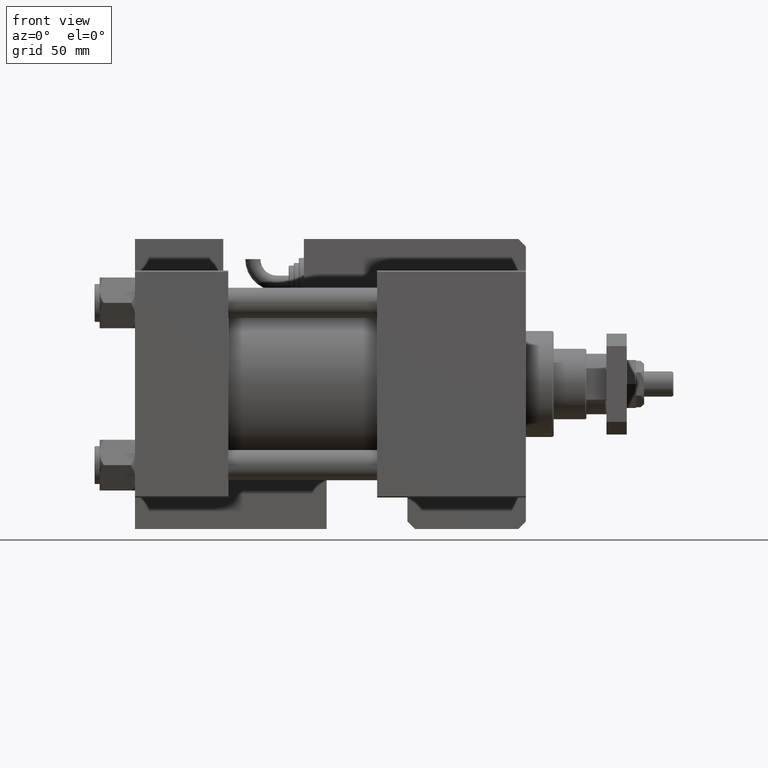
[diagram: clean part render]
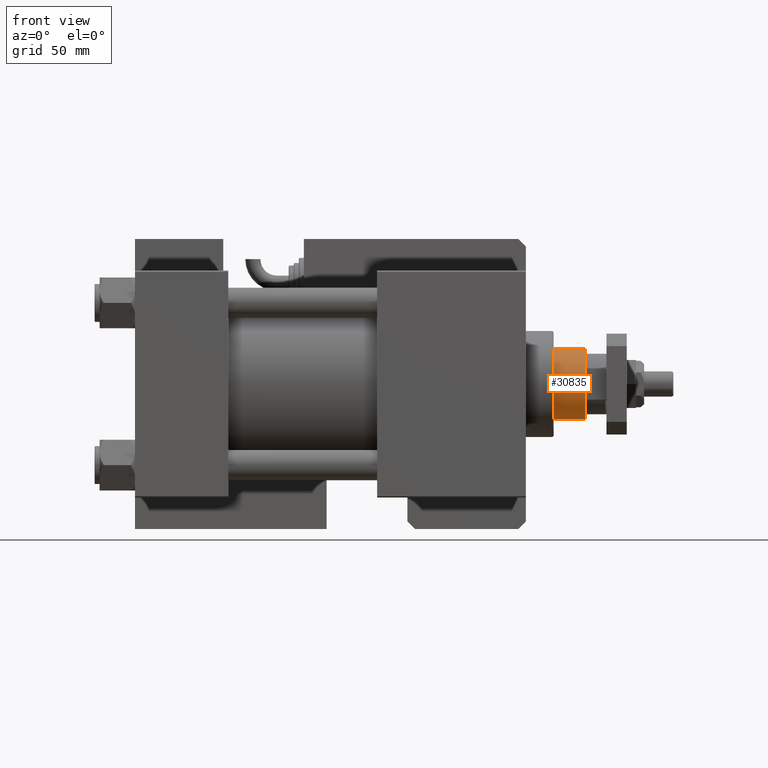
[diagram: same view with one face highlighted and labeled with its STEP entity id]
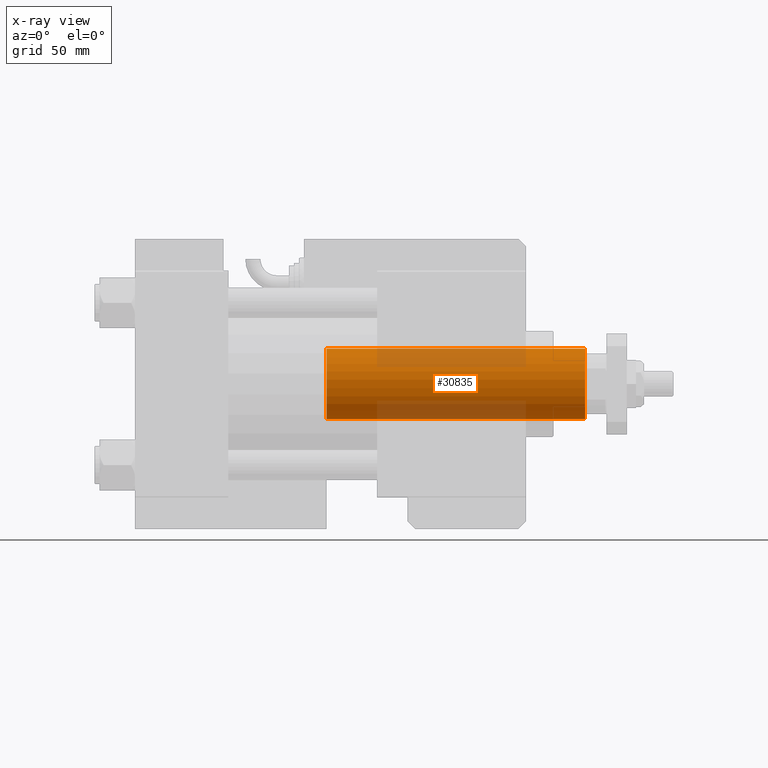
[diagram: x-ray of the same camera — body ghosted, the highlighted face saturated]
A machine part, front view. The second image highlights one B-rep face of the part: STEP entity #30835.
The next image is the same camera in x-ray: the body ghosted, the highlighted face saturated — about 30% of this face is hidden behind the body in this view.
In plain terms, the highlighted cylindrical surface (edge-blend (fillet) strip) has radius 14 mm, axis along (-1, 0, 0).
Its self-contained STEP definition (entity closure, byte-faithful):
#1441 = VERTEX_POINT ( 'NONE', #47573 ) ;
#4807 = EDGE_CURVE ( 'NONE', #44742, #5977, #26975, .T. ) ;
#5977 = VERTEX_POINT ( 'NONE', #21629 ) ;
#6563 = DIRECTION ( 'NONE',  ( -0.000000000000000000, -0.000000000000000000, -1.000000000000000000 ) ) ;
#7229 = EDGE_LOOP ( 'NONE', ( #55929, #9818, #54431, #52930 ) ) ;
#9192 = CARTESIAN_POINT ( 'NONE',  ( 0.000000000000000000, 0.000000000000000000, 141.5000000000000000 ) ) ;
#9818 = ORIENTED_EDGE ( 'NONE', *, *, #13834, .T. ) ;
#10718 = CARTESIAN_POINT ( 'NONE',  ( 14.00000000000000000, 1.714505518806294638E-15, 39.00000000000000000 ) ) ;
#10815 = FACE_OUTER_BOUND ( 'NONE', #7229, .T. ) ;
#13834 = EDGE_CURVE ( 'NONE', #52984, #44742, #36459, .T. ) ;
#15555 = CIRCLE ( 'NONE', #37235, 14.00000000000000000 ) ;
#21629 = CARTESIAN_POINT ( 'NONE',  ( -14.00000000000000000, 0.000000000000000000, 39.00000000000000000 ) ) ;
#22455 = AXIS2_PLACEMENT_3D ( 'NONE', #27024, #53299, #40855 ) ;
#22654 = CARTESIAN_POINT ( 'NONE',  ( 14.00000000000000000, 1.714505518806294638E-15, 141.5000000000000000 ) ) ;
#23041 = DIRECTION ( 'NONE',  ( 0.000000000000000000, 0.000000000000000000, -1.000000000000000000 ) ) ;
#24274 = CARTESIAN_POINT ( 'NONE',  ( 14.00000000000000000, 1.714505518806294638E-15, 142.0000000000000000 ) ) ;
#25413 = EDGE_CURVE ( 'NONE', #1441, #52984, #15555, .T. ) ;
#26747 = CARTESIAN_POINT ( 'NONE',  ( -14.00000000000000000, 0.000000000000000000, 142.0000000000000000 ) ) ;
#26975 = CIRCLE ( 'NONE', #22455, 14.00000000000000000 ) ;
#27023 = LINE ( 'NONE', #26747, #55378 ) ;
#27024 = CARTESIAN_POINT ( 'NONE',  ( 0.000000000000000000, 0.000000000000000000, 39.00000000000000000 ) ) ;
#30835 = ADVANCED_FACE ( 'NONE', ( #10815 ), #54060, .T. ) ;
#31472 = CARTESIAN_POINT ( 'NONE',  ( 0.000000000000000000, 0.000000000000000000, 142.0000000000000000 ) ) ;
#31654 = DIRECTION ( 'NONE',  ( -0.000000000000000000, -0.000000000000000000, -1.000000000000000000 ) ) ;
#31801 = DIRECTION ( 'NONE',  ( 1.000000000000000000, 0.000000000000000000, 0.000000000000000000 ) ) ;
#36459 = LINE ( 'NONE', #24274, #55395 ) ;
#36566 = DIRECTION ( 'NONE',  ( -1.000000000000000000, 0.000000000000000000, 0.000000000000000000 ) ) ;
#37235 = AXIS2_PLACEMENT_3D ( 'NONE', #9192, #23041, #31801 ) ;
#40855 = DIRECTION ( 'NONE',  ( 1.000000000000000000, 0.000000000000000000, 0.000000000000000000 ) ) ;
#44534 = DIRECTION ( 'NONE',  ( -0.000000000000000000, -0.000000000000000000, -1.000000000000000000 ) ) ;
#44742 = VERTEX_POINT ( 'NONE', #10718 ) ;
#47493 = EDGE_CURVE ( 'NONE', #1441, #5977, #27023, .T. ) ;
#47573 = CARTESIAN_POINT ( 'NONE',  ( -14.00000000000000000, 0.000000000000000000, 141.5000000000000000 ) ) ;
#48261 = AXIS2_PLACEMENT_3D ( 'NONE', #31472, #6563, #36566 ) ;
#52930 = ORIENTED_EDGE ( 'NONE', *, *, #47493, .F. ) ;
#52984 = VERTEX_POINT ( 'NONE', #22654 ) ;
#53299 = DIRECTION ( 'NONE',  ( 0.000000000000000000, 0.000000000000000000, 1.000000000000000000 ) ) ;
#54060 = CYLINDRICAL_SURFACE ( 'NONE', #48261, 14.00000000000000000 ) ;
#54431 = ORIENTED_EDGE ( 'NONE', *, *, #4807, .T. ) ;
#55378 = VECTOR ( 'NONE', #44534, 1000.000000000000000 ) ;
#55395 = VECTOR ( 'NONE', #31654, 1000.000000000000000 ) ;
#55929 = ORIENTED_EDGE ( 'NONE', *, *, #25413, .T. ) ;